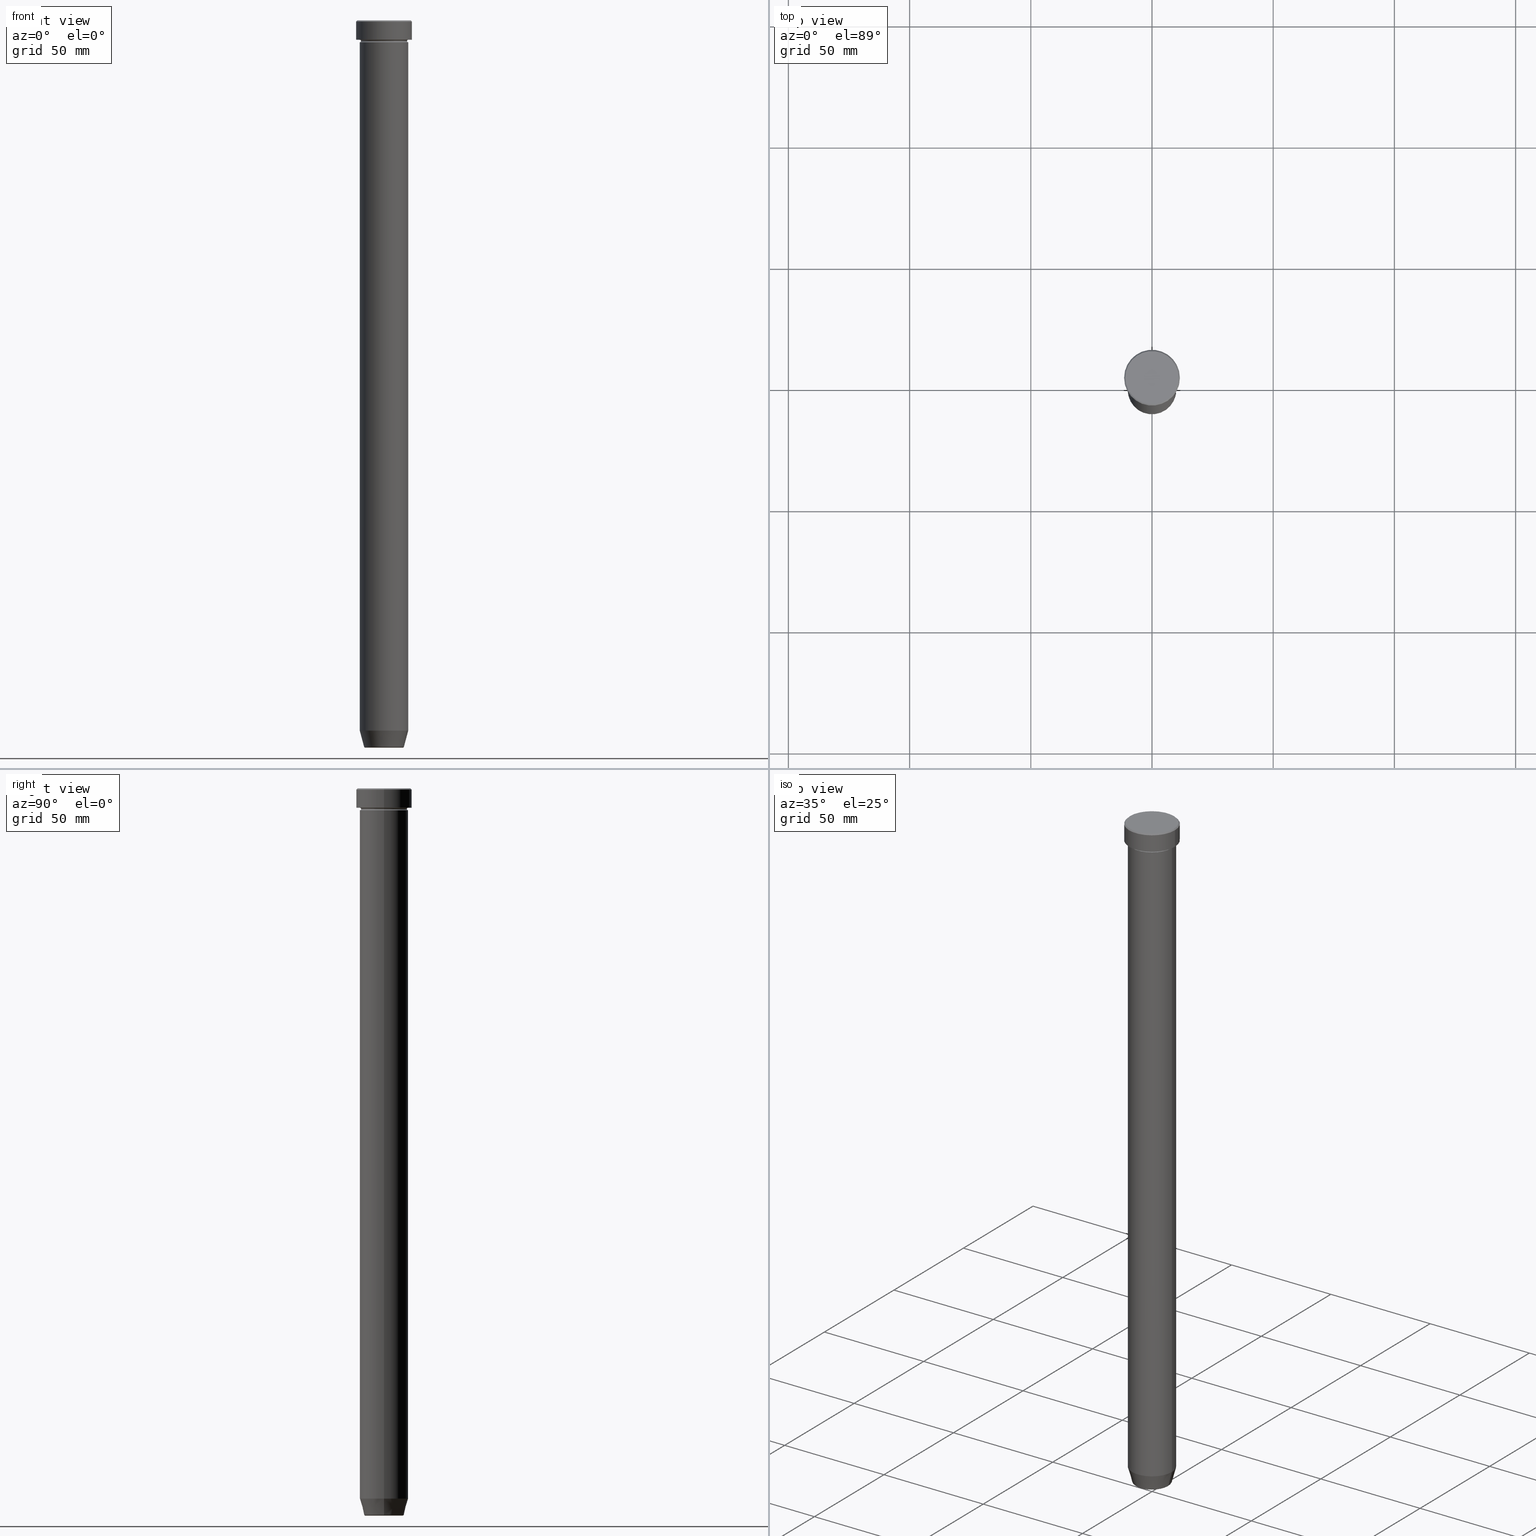
[diagram: canonical four-view strip — front | top / right | iso, engineering-drawing reading convention]
A machine part, canonical four-view strip (front | top / right | iso — engineering-drawing reading convention). The complete STEP part file that produces these views, byte-faithful:
ISO-10303-21;
HEADER;
FILE_DESCRIPTION (( 'STEP AP203' ),
    '1' );
FILE_NAME ('3844.STEP',
    '2024-01-02T20:50:25',
    ( '' ),
    ( '' ),
    'SwSTEP 2.0',
    'SolidWorks 2019',
    '' );
FILE_SCHEMA (( 'CONFIG_CONTROL_DESIGN' ));
ENDSEC;

DATA;
#1 = MANIFOLD_SOLID_BREP ( 'Zkosen�1', #423 ) ;
#2 = CARTESIAN_POINT ( 'NONE',  ( 7.740692158992655614, 0.000000000000000000, -299.5000000000000568 ) ) ;
#3 = EDGE_LOOP ( 'NONE', ( #97, #49, #366, #503 ) ) ;
#4 = CARTESIAN_POINT ( 'NONE',  ( 0.000000000000000000, 0.000000000000000000, 0.000000000000000000 ) ) ;
#5 = ORIENTED_EDGE ( 'NONE', *, *, #73, .F. ) ;
#6 = ORIENTED_EDGE ( 'NONE', *, *, #575, .F. ) ;
#7 = CONICAL_SURFACE ( 'NONE', #88, 11.00000000000000000, 0.7853981633974415066 ) ;
#8 = DIRECTION ( 'NONE',  ( -0.000000000000000000, -0.000000000000000000, 1.000000000000000000 ) ) ;
#9 = AXIS2_PLACEMENT_3D ( 'NONE', #283, #34, #325 ) ;
#10 = ADVANCED_FACE ( 'NONE', ( #159 ), #224, .T. ) ;
#11 = DIRECTION ( 'NONE',  ( -0.000000000000000000, -0.000000000000000000, 1.000000000000000000 ) ) ;
#12 = ORIENTED_EDGE ( 'NONE', *, *, #264, .T. ) ;
#13 = CYLINDRICAL_SURFACE ( 'NONE', #43, 10.00000000000000000 ) ;
#14 = PERSON_AND_ORGANIZATION ( #580, #476 ) ;
#15 = FACE_OUTER_BOUND ( 'NONE', #195, .T. ) ;
#16 = AXIS2_PLACEMENT_3D ( 'NONE', #313, #576, #163 ) ;
#17 = ORIENTED_EDGE ( 'NONE', *, *, #575, .T. ) ;
#18 = LINE ( 'NONE', #168, #129 ) ;
#19 = EDGE_CURVE ( 'NONE', #339, #137, #154, .T. ) ;
#20 = CALENDAR_DATE ( 2024, 2, 1 ) ;
#21 = DIRECTION ( 'NONE',  ( 0.000000000000000000, 0.000000000000000000, -1.000000000000000000 ) ) ;
#22 = EDGE_CURVE ( 'NONE', #514, #543, #444, .T. ) ;
#23 = DATE_TIME_ROLE ( 'classification_date' ) ;
#24 = FACE_OUTER_BOUND ( 'NONE', #587, .T. ) ;
#25 = CARTESIAN_POINT ( 'NONE',  ( 9.500000000000000000, 0.000000000000000000, -8.500000000000000000 ) ) ;
#26 = AXIS2_PLACEMENT_3D ( 'NONE', #439, #579, #583 ) ;
#27 = FACE_OUTER_BOUND ( 'NONE', #470, .T. ) ;
#28 = AXIS2_PLACEMENT_3D ( 'NONE', #509, #378, #178 ) ;
#29 = ORIENTED_EDGE ( 'NONE', *, *, #218, .F. ) ;
#30 = DIRECTION ( 'NONE',  ( 1.000000000000000000, 0.000000000000000000, 0.000000000000000000 ) ) ;
#31 = CARTESIAN_POINT ( 'NONE',  ( 0.000000000000000000, 0.000000000000000000, -22.00000000000000000 ) ) ;
#32 = CC_DESIGN_PERSON_AND_ORGANIZATION_ASSIGNMENT ( #346, #481, ( #363 ) ) ;
#33 = EDGE_CURVE ( 'NONE', #377, #229, #140, .T. ) ;
#34 = DIRECTION ( 'NONE',  ( -0.000000000000000000, -0.000000000000000000, 1.000000000000000000 ) ) ;
#35 = ORIENTED_EDGE ( 'NONE', *, *, #22, .F. ) ;
#36 = CIRCLE ( 'NONE', #569, 9.500000000000000000 ) ;
#37 = DIRECTION ( 'NONE',  ( 0.000000000000000000, -1.000000000000000000, 0.000000000000000000 ) ) ;
#38 = CARTESIAN_POINT ( 'NONE',  ( 0.000000000000000000, 3.061616997868383753E-14, -300.0000000000000568 ) ) ;
#39 = DIRECTION ( 'NONE',  ( 1.000000000000000000, 0.000000000000000000, 0.000000000000000000 ) ) ;
#40 = EDGE_LOOP ( 'NONE', ( #426, #374, #524, #381 ) ) ;
#41 = CONICAL_SURFACE ( 'NONE', #596, 8.124355652982131915, 0.2617993877991502405 ) ;
#42 = DIRECTION ( 'NONE',  ( 0.7071067811865426878, 8.659560562354874926E-17, -0.7071067811865524577 ) ) ;
#43 = AXIS2_PLACEMENT_3D ( 'NONE', #113, #525, #151 ) ;
#44 = LOCAL_TIME ( 21, 50, 25.00000000000000000, #396 ) ;
#45 = ORIENTED_EDGE ( 'NONE', *, *, #456, .F. ) ;
#46 = EDGE_CURVE ( 'NONE', #486, #482, #57, .T. ) ;
#47 = CARTESIAN_POINT ( 'NONE',  ( 0.000000000000000000, 0.000000000000000000, -299.5000000000000568 ) ) ;
#48 = ORIENTED_EDGE ( 'NONE', *, *, #441, .F. ) ;
#49 = ORIENTED_EDGE ( 'NONE', *, *, #449, .T. ) ;
#50 = DIRECTION ( 'NONE',  ( -0.000000000000000000, -0.000000000000000000, 1.000000000000000000 ) ) ;
#51 = ORIENTED_EDGE ( 'NONE', *, *, #326, .F. ) ;
#52 = VERTEX_POINT ( 'NONE', #402 ) ;
#53 = ORIENTED_EDGE ( 'NONE', *, *, #441, .T. ) ;
#54 = PLANE ( 'NONE',  #588 ) ;
#55 = AXIS2_PLACEMENT_3D ( 'NONE', #340, #337, #146 ) ;
#56 = ADVANCED_FACE ( 'NONE', ( #24 ), #450, .T. ) ;
#57 = LINE ( 'NONE', #110, #485 ) ;
#58 = ORIENTED_EDGE ( 'NONE', *, *, #214, .F. ) ;
#59 = CARTESIAN_POINT ( 'NONE',  ( 10.00000000000000000, 0.000000000000000000, -9.000000000000001776 ) ) ;
#60 = EDGE_CURVE ( 'NONE', #482, #256, #416, .T. ) ;
#61 = DATE_TIME_ROLE ( 'creation_date' ) ;
#62 = FACE_OUTER_BOUND ( 'NONE', #454, .T. ) ;
#63 = ADVANCED_FACE ( 'NONE', ( #156 ), #434, .T. ) ;
#64 = ORIENTED_EDGE ( 'NONE', *, *, #512, .T. ) ;
#65 = VERTEX_POINT ( 'NONE', #311 ) ;
#66 = DIRECTION ( 'NONE',  ( -0.000000000000000000, -0.000000000000000000, 1.000000000000000000 ) ) ;
#67 = AXIS2_PLACEMENT_3D ( 'NONE', #271, #125, #87 ) ;
#68 = TOROIDAL_SURFACE ( 'NONE', #9, 7.740692158992655614, 0.5000000000000000000 ) ;
#69 = LINE ( 'NONE', #391, #545 ) ;
#70 = PERSON_AND_ORGANIZATION ( #580, #476 ) ;
#71 = CARTESIAN_POINT ( 'NONE',  ( 0.000000000000000000, 0.000000000000000000, -300.0000000000000568 ) ) ;
#72 = APPLICATION_PROTOCOL_DEFINITION ( 'international standard', 'config_control_design', 1994, #563 ) ;
#73 = EDGE_CURVE ( 'NONE', #358, #324, #228, .T. ) ;
#74 = DIRECTION ( 'NONE',  ( -0.000000000000000000, -0.000000000000000000, 1.000000000000000000 ) ) ;
#75 = EDGE_LOOP ( 'NONE', ( #245, #141 ) ) ;
#76 = DIRECTION ( 'NONE',  ( 1.000000000000000000, 0.000000000000000000, 0.000000000000000000 ) ) ;
#77 = DESIGN_CONTEXT ( 'detailed design', #594, 'design' ) ;
#78 = DIRECTION ( 'NONE',  ( 0.000000000000000000, 0.000000000000000000, -1.000000000000000000 ) ) ;
#79 = ADVANCED_FACE ( 'NONE', ( #275 ), #407, .T. ) ;
#80 = AXIS2_PLACEMENT_3D ( 'NONE', #133, #592, #76 ) ;
#81 = ADVANCED_FACE ( 'NONE', ( #177 ), #41, .T. ) ;
#82 = CIRCLE ( 'NONE', #276, 7.740692158992655614 ) ;
#83 = CARTESIAN_POINT ( 'NONE',  ( 0.000000000000000000, 0.000000000000000000, -0.5000000000000073275 ) ) ;
#84 = VERTEX_POINT ( 'NONE', #217 ) ;
#85 = DIRECTION ( 'NONE',  ( -0.000000000000000000, -0.000000000000000000, 1.000000000000000000 ) ) ;
#86 = APPROVAL ( #529, 'NEUR�EN�' ) ;
#87 = DIRECTION ( 'NONE',  ( 1.000000000000000000, 0.000000000000000000, 0.000000000000000000 ) ) ;
#88 = AXIS2_PLACEMENT_3D ( 'NONE', #430, #288, #427 ) ;
#89 = AXIS2_PLACEMENT_3D ( 'NONE', #165, #78, #544 ) ;
#90 = ADVANCED_FACE ( 'NONE', ( #586 ), #171, .T. ) ;
#91 = FACE_OUTER_BOUND ( 'NONE', #460, .T. ) ;
#92 = EDGE_LOOP ( 'NONE', ( #93, #411, #471, #518 ) ) ;
#93 = ORIENTED_EDGE ( 'NONE', *, *, #319, .F. ) ;
#94 = DIRECTION ( 'NONE',  ( -0.000000000000000000, -0.000000000000000000, 1.000000000000000000 ) ) ;
#95 = ADVANCED_FACE ( 'NONE', ( #27 ), #235, .F. ) ;
#96 = CALENDAR_DATE ( 2024, 2, 1 ) ;
#97 = ORIENTED_EDGE ( 'NONE', *, *, #46, .F. ) ;
#98 = EDGE_LOOP ( 'NONE', ( #51, #517, #12, #472 ) ) ;
#99 = DIRECTION ( 'NONE',  ( -0.000000000000000000, -0.000000000000000000, 1.000000000000000000 ) ) ;
#100 = ORIENTED_EDGE ( 'NONE', *, *, #510, .T. ) ;
#101 = EDGE_CURVE ( 'NONE', #249, #244, #128, .T. ) ;
#102 = DIRECTION ( 'NONE',  ( -0.000000000000000000, -0.000000000000000000, 1.000000000000000000 ) ) ;
#103 = ORIENTED_EDGE ( 'NONE', *, *, #148, .F. ) ;
#104 = ORIENTED_EDGE ( 'NONE', *, *, #169, .T. ) ;
#105 = ORIENTED_EDGE ( 'NONE', *, *, #124, .F. ) ;
#106 = CARTESIAN_POINT ( 'NONE',  ( 0.000000000000000000, 0.000000000000000000, -0.5000000000000073275 ) ) ;
#107 = AXIS2_PLACEMENT_3D ( 'NONE', #382, #99, #349 ) ;
#108 = DIRECTION ( 'NONE',  ( 0.000000000000000000, 0.000000000000000000, 1.000000000000000000 ) ) ;
#109 = DIRECTION ( 'NONE',  ( 1.000000000000000000, 0.000000000000000000, 0.000000000000000000 ) ) ;
#110 = CARTESIAN_POINT ( 'NONE',  ( -11.50000000000000000, 1.408343819019456176E-15, 0.000000000000000000 ) ) ;
#111 = DATE_AND_TIME ( #352, #528 ) ;
#112 = DIRECTION ( 'NONE',  ( 0.000000000000000000, 0.000000000000000000, -1.000000000000000000 ) ) ;
#113 = CARTESIAN_POINT ( 'NONE',  ( 0.000000000000000000, 0.000000000000000000, 0.000000000000000000 ) ) ;
#114 = CARTESIAN_POINT ( 'NONE',  ( 0.000000000000000000, 0.000000000000000000, 0.000000000000000000 ) ) ;
#115 = COORDINATED_UNIVERSAL_TIME_OFFSET ( 1, 0, .AHEAD. ) ;
#116 = CARTESIAN_POINT ( 'NONE',  ( -9.999999999999998224, 1.224646799147353059E-15, 0.000000000000000000 ) ) ;
#117 = AXIS2_PLACEMENT_3D ( 'NONE', #106, #389, #197 ) ;
#118 = AXIS2_PLACEMENT_3D ( 'NONE', #266, #440, #123 ) ;
#119 = APPROVAL_PERSON_ORGANIZATION ( #298, #86, #442 ) ;
#120 = COORDINATED_UNIVERSAL_TIME_OFFSET ( 1, 0, .AHEAD. ) ;
#121 = EDGE_CURVE ( 'NONE', #279, #256, #69, .T. ) ;
#122 = DIRECTION ( 'NONE',  ( 1.000000000000000000, 0.000000000000000000, 0.000000000000000000 ) ) ;
#123 = DIRECTION ( 'NONE',  ( 1.000000000000000000, 0.000000000000000000, 0.000000000000000000 ) ) ;
#124 = EDGE_CURVE ( 'NONE', #339, #278, #383, .T. ) ;
#125 = DIRECTION ( 'NONE',  ( -0.000000000000000000, -0.000000000000000000, 1.000000000000000000 ) ) ;
#126 = CC_DESIGN_DATE_AND_TIME_ASSIGNMENT ( #533, #61, ( #447 ) ) ;
#127 = CARTESIAN_POINT ( 'NONE',  ( 8.124355652982131915, 0.000000000000000000, -300.0000000000000568 ) ) ;
#128 = CIRCLE ( 'NONE', #200, 0.5000000000000004441 ) ;
#129 = VECTOR ( 'NONE', #443, 1000.000000000000114 ) ;
#130 = ORIENTED_EDGE ( 'NONE', *, *, #139, .T. ) ;
#131 = DIRECTION ( 'NONE',  ( -0.000000000000000000, -0.000000000000000000, 1.000000000000000000 ) ) ;
#132 = CARTESIAN_POINT ( 'NONE',  ( 0.000000000000000000, 11.50000000000000000, -8.000000000000000000 ) ) ;
#133 = CARTESIAN_POINT ( 'NONE',  ( 0.000000000000000000, 0.000000000000000000, 0.000000000000000000 ) ) ;
#134 = ADVANCED_FACE ( 'NONE', ( #62 ), #54, .T. ) ;
#135 = EDGE_LOOP ( 'NONE', ( #368, #371, #210, #103 ) ) ;
#136 = AXIS2_PLACEMENT_3D ( 'NONE', #31, #74, #401 ) ;
#137 = VERTEX_POINT ( 'NONE', #59 ) ;
#138 = ORIENTED_EDGE ( 'NONE', *, *, #139, .F. ) ;
#139 = EDGE_CURVE ( 'NONE', #336, #65, #361, .T. ) ;
#140 = CIRCLE ( 'NONE', #495, 0.5000000000000004441 ) ;
#141 = ORIENTED_EDGE ( 'NONE', *, *, #449, .F. ) ;
#142 = CIRCLE ( 'NONE', #136, 10.00000000000000000 ) ;
#143 = AXIS2_PLACEMENT_3D ( 'NONE', #542, #211, #30 ) ;
#144 = FACE_OUTER_BOUND ( 'NONE', #92, .T. ) ;
#145 = ORIENTED_EDGE ( 'NONE', *, *, #510, .F. ) ;
#146 = DIRECTION ( 'NONE',  ( -1.000000000000000000, 0.000000000000000000, 0.000000000000000000 ) ) ;
#147 = CC_DESIGN_PERSON_AND_ORGANIZATION_ASSIGNMENT ( #557, #233, ( #363 ) ) ;
#148 = EDGE_CURVE ( 'NONE', #256, #482, #515, .T. ) ;
#149 = DIRECTION ( 'NONE',  ( -0.000000000000000000, -0.000000000000000000, 1.000000000000000000 ) ) ;
#150 = APPROVAL_STATUS ( 'not_yet_approved' ) ;
#151 = DIRECTION ( 'NONE',  ( 1.000000000000000000, 0.000000000000000000, 0.000000000000000000 ) ) ;
#152 = CIRCLE ( 'NONE', #223, 9.500000000000000000 ) ;
#153 = CC_DESIGN_SECURITY_CLASSIFICATION ( #315, ( #363 ) ) ;
#154 = LINE ( 'NONE', #338, #294 ) ;
#155 = APPROVAL_STATUS ( 'not_yet_approved' ) ;
#156 = FACE_OUTER_BOUND ( 'NONE', #135, .T. ) ;
#157 = CARTESIAN_POINT ( 'NONE',  ( 0.000000000000000000, 0.000000000000000000, -9.000000000000001776 ) ) ;
#158 = APPROVAL_DATE_TIME ( #350, #86 ) ;
#159 = FACE_OUTER_BOUND ( 'NONE', #286, .T. ) ;
#160 = DIRECTION ( 'NONE',  ( 1.224646799147353207E-16, 1.000000000000000000, 0.000000000000000000 ) ) ;
#161 = EDGE_CURVE ( 'NONE', #244, #229, #334, .T. ) ;
#162 = COORDINATED_UNIVERSAL_TIME_OFFSET ( 1, 0, .AHEAD. ) ;
#163 = DIRECTION ( 'NONE',  ( -1.000000000000000000, 0.000000000000000000, 0.000000000000000000 ) ) ;
#164 = CIRCLE ( 'NONE', #55, 10.00000000000000000 ) ;
#165 = CARTESIAN_POINT ( 'NONE',  ( 0.000000000000000000, 0.000000000000000000, -8.500000000000000000 ) ) ;
#166 = ADVANCED_FACE ( 'NONE', ( #144 ), #7, .T. ) ;
#167 = FACE_OUTER_BOUND ( 'NONE', #451, .T. ) ;
#168 = CARTESIAN_POINT ( 'NONE',  ( -8.124355652982131915, 9.949466145559272639E-16, -300.0000000000000568 ) ) ;
#169 = EDGE_CURVE ( 'NONE', #65, #543, #255, .T. ) ;
#170 = AXIS2_PLACEMENT_3D ( 'NONE', #422, #292, #242 ) ;
#171 = PLANE ( 'NONE',  #393 ) ;
#172 = CIRCLE ( 'NONE', #537, 7.740692158992655614 ) ;
#173 = AXIS2_PLACEMENT_3D ( 'NONE', #301, #108, #392 ) ;
#174 = ORIENTED_EDGE ( 'NONE', *, *, #101, .T. ) ;
#175 = ORIENTED_EDGE ( 'NONE', *, *, #22, .T. ) ;
#176 = CARTESIAN_POINT ( 'NONE',  ( 7.740692158992655614, 0.000000000000000000, -300.0000000000000568 ) ) ;
#177 = FACE_OUTER_BOUND ( 'NONE', #347, .T. ) ;
#178 = DIRECTION ( 'NONE',  ( 1.000000000000000000, 0.000000000000000000, 0.000000000000000000 ) ) ;
#179 = AXIS2_PLACEMENT_3D ( 'NONE', #2, #560, #341 ) ;
#180 = CIRCLE ( 'NONE', #230, 10.00000000000000000 ) ;
#181 = EDGE_CURVE ( 'NONE', #229, #244, #164, .T. ) ;
#182 = DIRECTION ( 'NONE',  ( 1.000000000000000000, 0.000000000000000000, 0.000000000000000000 ) ) ;
#183 = ORIENTED_EDGE ( 'NONE', *, *, #353, .T. ) ;
#184 = VERTEX_POINT ( 'NONE', #193 ) ;
#185 = DIRECTION ( 'NONE',  ( -0.000000000000000000, -0.000000000000000000, 1.000000000000000000 ) ) ;
#186 = ORIENTED_EDGE ( 'NONE', *, *, #332, .F. ) ;
#187 = APPLICATION_PROTOCOL_DEFINITION ( 'international standard', 'config_control_design', 1994, #594 ) ;
#188 = ORIENTED_EDGE ( 'NONE', *, *, #73, .T. ) ;
#189 = DIRECTION ( 'NONE',  ( -0.000000000000000000, -0.000000000000000000, 1.000000000000000000 ) ) ;
#190 = ORIENTED_EDGE ( 'NONE', *, *, #33, .F. ) ;
#191 = AXIS2_PLACEMENT_3D ( 'NONE', #114, #541, #428 ) ;
#192 = TOROIDAL_SURFACE ( 'NONE', #295, 10.00000000000000000, 0.5000000000000000000 ) ;
#193 = CARTESIAN_POINT ( 'NONE',  ( -10.00000000000000000, 1.224646799147353256E-15, -9.000000000000001776 ) ) ;
#194 = CARTESIAN_POINT ( 'NONE',  ( 0.000000000000000000, 0.000000000000000000, -22.00000000000000000 ) ) ;
#195 = EDGE_LOOP ( 'NONE', ( #479, #130, #58, #35 ) ) ;
#196 = CYLINDRICAL_SURFACE ( 'NONE', #562, 10.00000000000000000 ) ;
#197 = DIRECTION ( 'NONE',  ( 1.000000000000000000, 0.000000000000000000, 0.000000000000000000 ) ) ;
#198 = APPROVAL_ROLE ( '' ) ;
#199 = DIRECTION ( 'NONE',  ( 0.000000000000000000, 0.000000000000000000, -1.000000000000000000 ) ) ;
#200 = AXIS2_PLACEMENT_3D ( 'NONE', #243, #526, #431 ) ;
#201 = ADVANCED_FACE ( 'NONE', ( #395 ), #196, .T. ) ;
#202 = DIRECTION ( 'NONE',  ( -1.000000000000000000, 0.000000000000000000, 0.000000000000000000 ) ) ;
#203 = MECHANICAL_CONTEXT ( 'NONE', #563, 'mechanical' ) ;
#204 = CARTESIAN_POINT ( 'NONE',  ( -10.00000000000000000, 1.224646799147353256E-15, -22.00000000000000000 ) ) ;
#205 = ADVANCED_FACE ( 'NONE', ( #564 ), #13, .T. ) ;
#206 = ORIENTED_EDGE ( 'NONE', *, *, #121, .F. ) ;
#207 = SHAPE_DEFINITION_REPRESENTATION ( #565, #405 ) ;
#208 = FACE_OUTER_BOUND ( 'NONE', #277, .T. ) ;
#209 = PERSON_AND_ORGANIZATION ( #580, #476 ) ;
#210 = ORIENTED_EDGE ( 'NONE', *, *, #500, .T. ) ;
#211 = DIRECTION ( 'NONE',  ( -0.000000000000000000, -0.000000000000000000, 1.000000000000000000 ) ) ;
#212 = CC_DESIGN_PERSON_AND_ORGANIZATION_ASSIGNMENT ( #70, #531, ( #315 ) ) ;
#213 = AXIS2_PLACEMENT_3D ( 'NONE', #47, #421, #519 ) ;
#214 = EDGE_CURVE ( 'NONE', #543, #65, #505, .T. ) ;
#215 = DIRECTION ( 'NONE',  ( 0.2588190451025214611, 0.000000000000000000, 0.9659258262890679791 ) ) ;
#216 = DIRECTION ( 'NONE',  ( 1.000000000000000000, 0.000000000000000000, 0.000000000000000000 ) ) ;
#217 = CARTESIAN_POINT ( 'NONE',  ( 11.00000000000000000, 1.377727649040772389E-15, 0.000000000000000000 ) ) ;
#218 = EDGE_CURVE ( 'NONE', #137, #184, #314, .T. ) ;
#219 = ORIENTED_EDGE ( 'NONE', *, *, #181, .T. ) ;
#220 = DIRECTION ( 'NONE',  ( 0.000000000000000000, 0.000000000000000000, -1.000000000000000000 ) ) ;
#221 = EDGE_CURVE ( 'NONE', #278, #184, #561, .T. ) ;
#222 = AXIS2_PLACEMENT_3D ( 'NONE', #38, #412, #282 ) ;
#223 = AXIS2_PLACEMENT_3D ( 'NONE', #227, #415, #182 ) ;
#224 = CYLINDRICAL_SURFACE ( 'NONE', #191, 9.999999999999998224 ) ;
#225 = LINE ( 'NONE', #595, #589 ) ;
#226 = DIRECTION ( 'NONE',  ( -0.000000000000000000, -0.000000000000000000, 1.000000000000000000 ) ) ;
#227 = CARTESIAN_POINT ( 'NONE',  ( 0.000000000000000000, 0.000000000000000000, -8.500000000000000000 ) ) ;
#228 = CIRCLE ( 'NONE', #67, 9.999999999999998224 ) ;
#229 = VERTEX_POINT ( 'NONE', #465 ) ;
#230 = AXIS2_PLACEMENT_3D ( 'NONE', #157, #66, #263 ) ;
#231 = CARTESIAN_POINT ( 'NONE',  ( -11.50000000000000000, 1.408343819019456176E-15, -0.5000000000000073275 ) ) ;
#232 = ORIENTED_EDGE ( 'NONE', *, *, #254, .T. ) ;
#233 = PERSON_AND_ORGANIZATION_ROLE ( 'design_supplier' ) ;
#234 = CARTESIAN_POINT ( 'NONE',  ( 0.000000000000000000, 0.000000000000000000, -22.00000000000000000 ) ) ;
#235 = PLANE ( 'NONE',  #536 ) ;
#236 = ORIENTED_EDGE ( 'NONE', *, *, #333, .F. ) ;
#237 = CARTESIAN_POINT ( 'NONE',  ( 0.000000000000000000, 0.000000000000000000, -299.6294095225512706 ) ) ;
#238 = ORIENTED_EDGE ( 'NONE', *, *, #250, .T. ) ;
#239 = AXIS2_PLACEMENT_3D ( 'NONE', #83, #199, #571 ) ;
#240 = CIRCLE ( 'NONE', #335, 11.50000000000000000 ) ;
#241 = CC_DESIGN_APPROVAL ( #86, ( #447 ) ) ;
#242 = DIRECTION ( 'NONE',  ( -1.000000000000000000, 1.224646799147355426E-16, 0.000000000000000000 ) ) ;
#243 = CARTESIAN_POINT ( 'NONE',  ( -10.00000000000000000, 0.000000000000000000, -8.500000000000000000 ) ) ;
#244 = VERTEX_POINT ( 'NONE', #480 ) ;
#245 = ORIENTED_EDGE ( 'NONE', *, *, #250, .F. ) ;
#246 = DIRECTION ( 'NONE',  ( 1.000000000000000000, 0.000000000000000000, 0.000000000000000000 ) ) ;
#247 = ORIENTED_EDGE ( 'NONE', *, *, #60, .T. ) ;
#248 = PERSON_AND_ORGANIZATION_ROLE ( 'design_owner' ) ;
#249 = VERTEX_POINT ( 'NONE', #433 ) ;
#250 = EDGE_CURVE ( 'NONE', #279, #486, #240, .T. ) ;
#251 = DIRECTION ( 'NONE',  ( -0.000000000000000000, -0.000000000000000000, 1.000000000000000000 ) ) ;
#252 = SECURITY_CLASSIFICATION_LEVEL ( 'unclassified' ) ;
#253 = ORIENTED_EDGE ( 'NONE', *, *, #218, .T. ) ;
#254 = EDGE_CURVE ( 'NONE', #324, #358, #305, .T. ) ;
#255 = CIRCLE ( 'NONE', #504, 8.223655072137189492 ) ;
#256 = VERTEX_POINT ( 'NONE', #342 ) ;
#257 = CARTESIAN_POINT ( 'NONE',  ( 0.000000000000000000, 0.000000000000000000, 0.000000000000000000 ) ) ;
#258 = CIRCLE ( 'NONE', #435, 11.50000000000000000 ) ;
#259 = DATE_AND_TIME ( #20, #323 ) ;
#260 = DIRECTION ( 'NONE',  ( 1.000000000000000000, 0.000000000000000000, 0.000000000000000000 ) ) ;
#261 = ADVANCED_FACE ( 'NONE', ( #15 ), #445, .T. ) ;
#262 = DIRECTION ( 'NONE',  ( -0.000000000000000000, -0.000000000000000000, 1.000000000000000000 ) ) ;
#263 = DIRECTION ( 'NONE',  ( 1.000000000000000000, 0.000000000000000000, 0.000000000000000000 ) ) ;
#264 = EDGE_CURVE ( 'NONE', #184, #137, #180, .T. ) ;
#265 = CARTESIAN_POINT ( 'NONE',  ( 0.000000000000000000, 0.000000000000000000, -300.0000000000000568 ) ) ;
#266 = CARTESIAN_POINT ( 'NONE',  ( 0.000000000000000000, 0.000000000000000000, 0.000000000000000000 ) ) ;
#267 = AXIS2_PLACEMENT_3D ( 'NONE', #355, #539, #122 ) ;
#268 = ORIENTED_EDGE ( 'NONE', *, *, #384, .T. ) ;
#269 = DIRECTION ( 'NONE',  ( -0.000000000000000000, -0.000000000000000000, 1.000000000000000000 ) ) ;
#270 = DIRECTION ( 'NONE',  ( 1.000000000000000000, 0.000000000000000000, 0.000000000000000000 ) ) ;
#271 = CARTESIAN_POINT ( 'NONE',  ( 0.000000000000000000, 0.000000000000000000, -293.0000000000000568 ) ) ;
#272 = ADVANCED_FACE ( 'NONE', ( #167 ), #394, .T. ) ;
#273 = CARTESIAN_POINT ( 'NONE',  ( 10.00000000000000000, 0.000000000000000000, -8.500000000000000000 ) ) ;
#274 = PRODUCT_RELATED_PRODUCT_CATEGORY ( 'detail', '', ( #344 ) ) ;
#275 = FACE_OUTER_BOUND ( 'NONE', #3, .T. ) ;
#276 = AXIS2_PLACEMENT_3D ( 'NONE', #71, #21, #547 ) ;
#277 = EDGE_LOOP ( 'NONE', ( #551, #188, #53, #145 ) ) ;
#278 = VERTEX_POINT ( 'NONE', #204 ) ;
#279 = VERTEX_POINT ( 'NONE', #397 ) ;
#280 = DIRECTION ( 'NONE',  ( 1.000000000000000000, 0.000000000000000000, 0.000000000000000000 ) ) ;
#281 = UNCERTAINTY_MEASURE_WITH_UNIT (LENGTH_MEASURE( 1.000000000000000082E-05 ), #373, 'distance_accuracy_value', 'NONE');
#282 = DIRECTION ( 'NONE',  ( 1.000000000000000000, 0.000000000000000000, 0.000000000000000000 ) ) ;
#283 = CARTESIAN_POINT ( 'NONE',  ( 0.000000000000000000, 0.000000000000000000, -299.5000000000000568 ) ) ;
#284 = ORIENTED_EDGE ( 'NONE', *, *, #287, .T. ) ;
#285 = TOROIDAL_SURFACE ( 'NONE', #16, 10.00000000000000000, 0.5000000000000000000 ) ;
#286 = EDGE_LOOP ( 'NONE', ( #232, #183, #599, #48 ) ) ;
#287 = EDGE_CURVE ( 'NONE', #65, #358, #18, .T. ) ;
#288 = DIRECTION ( 'NONE',  ( 0.000000000000000000, 0.000000000000000000, -1.000000000000000000 ) ) ;
#289 = DIRECTION ( 'NONE',  ( 0.000000000000000000, 0.000000000000000000, -1.000000000000000000 ) ) ;
#290 = EDGE_LOOP ( 'NONE', ( #138, #236, #175, #466 ) ) ;
#291 = ORIENTED_EDGE ( 'NONE', *, *, #181, .F. ) ;
#292 = DIRECTION ( 'NONE',  ( 1.224646799147353207E-16, 1.000000000000000000, 0.000000000000000000 ) ) ;
#293 = DIRECTION ( 'NONE',  ( -1.224646799147353207E-16, 1.000000000000000000, 0.000000000000000000 ) ) ;
#294 = VECTOR ( 'NONE', #94, 1000.000000000000000 ) ;
#295 = AXIS2_PLACEMENT_3D ( 'NONE', #461, #185, #409 ) ;
#296 = CC_DESIGN_APPROVAL ( #577, ( #315 ) ) ;
#297 = CARTESIAN_POINT ( 'NONE',  ( 0.000000000000000000, 0.000000000000000000, -8.000000000000000000 ) ) ;
#298 = PERSON_AND_ORGANIZATION ( #580, #476 ) ;
#299 = CARTESIAN_POINT ( 'NONE',  ( -10.00000000000000000, 1.224646799147353256E-15, 0.000000000000000000 ) ) ;
#300 = CC_DESIGN_PERSON_AND_ORGANIZATION_ASSIGNMENT ( #209, #248, ( #344 ) ) ;
#301 = CARTESIAN_POINT ( 'NONE',  ( 0.000000000000000000, 0.000000000000000000, 0.000000000000000000 ) ) ;
#302 = DIRECTION ( 'NONE',  ( -0.000000000000000000, -0.000000000000000000, 1.000000000000000000 ) ) ;
#303 = APPROVAL_DATE_TIME ( #432, #484 ) ;
#304 = AXIS2_PLACEMENT_3D ( 'NONE', #234, #102, #477 ) ;
#305 = CIRCLE ( 'NONE', #516, 9.999999999999998224 ) ;
#306 = CYLINDRICAL_SURFACE ( 'NONE', #385, 9.999999999999998224 ) ;
#307 = CALENDAR_DATE ( 2024, 2, 1 ) ;
#308 = DIRECTION ( 'NONE',  ( -0.000000000000000000, -0.000000000000000000, 1.000000000000000000 ) ) ;
#309 = ADVANCED_FACE ( 'NONE', ( #208 ), #306, .T. ) ;
#310 = DIRECTION ( 'NONE',  ( -0.000000000000000000, -0.000000000000000000, 1.000000000000000000 ) ) ;
#311 = CARTESIAN_POINT ( 'NONE',  ( -8.223655072137189492, 1.115877042642911856E-15, -299.6294095225512706 ) ) ;
#312 = CARTESIAN_POINT ( 'NONE',  ( 9.999999999999998224, 0.000000000000000000, -293.0000000000000568 ) ) ;
#313 = CARTESIAN_POINT ( 'NONE',  ( 0.000000000000000000, 0.000000000000000000, -8.500000000000000000 ) ) ;
#314 = CIRCLE ( 'NONE', #463, 10.00000000000000000 ) ;
#315 = SECURITY_CLASSIFICATION ( '', '', #252 ) ;
#316 = ORIENTED_EDGE ( 'NONE', *, *, #319, .T. ) ;
#317 = ORIENTED_EDGE ( 'NONE', *, *, #254, .F. ) ;
#318 = CARTESIAN_POINT ( 'NONE',  ( 0.000000000000000000, 0.000000000000000000, -8.500000000000000000 ) ) ;
#319 = EDGE_CURVE ( 'NONE', #84, #52, #546, .T. ) ;
#320 = FACE_OUTER_BOUND ( 'NONE', #98, .T. ) ;
#321 = LINE ( 'NONE', #555, #424 ) ;
#322 = VECTOR ( 'NONE', #149, 1000.000000000000000 ) ;
#323 = LOCAL_TIME ( 21, 50, 25.00000000000000000, #331 ) ;
#324 = VERTEX_POINT ( 'NONE', #312 ) ;
#325 = DIRECTION ( 'NONE',  ( 1.000000000000000000, 0.000000000000000000, 0.000000000000000000 ) ) ;
#326 = EDGE_CURVE ( 'NONE', #249, #377, #36, .T. ) ;
#327 = EDGE_LOOP ( 'NONE', ( #513, #420, #520, #330 ) ) ;
#328 = ORIENTED_EDGE ( 'NONE', *, *, #161, .T. ) ;
#329 = FACE_OUTER_BOUND ( 'NONE', #290, .T. ) ;
#330 = ORIENTED_EDGE ( 'NONE', *, *, #264, .F. ) ;
#331 = COORDINATED_UNIVERSAL_TIME_OFFSET ( 1, 0, .AHEAD. ) ;
#332 = EDGE_CURVE ( 'NONE', #249, #184, #553, .T. ) ;
#333 = EDGE_CURVE ( 'NONE', #514, #336, #82, .T. ) ;
#334 = CIRCLE ( 'NONE', #455, 10.00000000000000000 ) ;
#335 = AXIS2_PLACEMENT_3D ( 'NONE', #297, #8, #388 ) ;
#336 = VERTEX_POINT ( 'NONE', #581 ) ;
#337 = DIRECTION ( 'NONE',  ( -0.000000000000000000, -0.000000000000000000, 1.000000000000000000 ) ) ;
#338 = CARTESIAN_POINT ( 'NONE',  ( 10.00000000000000000, 0.000000000000000000, 0.000000000000000000 ) ) ;
#339 = VERTEX_POINT ( 'NONE', #585 ) ;
#340 = CARTESIAN_POINT ( 'NONE',  ( 0.000000000000000000, 0.000000000000000000, -8.000000000000000000 ) ) ;
#341 = DIRECTION ( 'NONE',  ( 0.000000000000000000, 0.000000000000000000, -1.000000000000000000 ) ) ;
#342 = CARTESIAN_POINT ( 'NONE',  ( 11.50000000000000000, 0.000000000000000000, -0.5000000000000073275 ) ) ;
#343 = AXIS2_PLACEMENT_3D ( 'NONE', #273, #37, #220 ) ;
#344 = PRODUCT ( '3844', '3844', '', ( #203 ) ) ;
#345 = CARTESIAN_POINT ( 'NONE',  ( 0.000000000000000000, 0.000000000000000000, -9.000000000000001776 ) ) ;
#346 = PERSON_AND_ORGANIZATION ( #580, #476 ) ;
#347 = EDGE_LOOP ( 'NONE', ( #375, #104, #268, #5 ) ) ;
#348 = CARTESIAN_POINT ( 'NONE',  ( 0.000000000000000000, 0.000000000000000000, 0.000000000000000000 ) ) ;
#349 = DIRECTION ( 'NONE',  ( -1.000000000000000000, 0.000000000000000000, 0.000000000000000000 ) ) ;
#350 = DATE_AND_TIME ( #96, #425 ) ;
#351 = DIRECTION ( 'NONE',  ( -1.000000000000000000, 1.224646799147353454E-16, 0.000000000000000000 ) ) ;
#352 = CALENDAR_DATE ( 2024, 2, 1 ) ;
#353 = EDGE_CURVE ( 'NONE', #358, #490, #359, .T. ) ;
#354 = AXIS2_PLACEMENT_3D ( 'NONE', #590, #131, #280 ) ;
#355 = CARTESIAN_POINT ( 'NONE',  ( 0.000000000000000000, 0.000000000000000000, -22.00000000000000000 ) ) ;
#356 = CARTESIAN_POINT ( 'NONE',  ( -9.999999999999998224, 1.224646799147353059E-15, -293.0000000000000568 ) ) ;
#357 = DIRECTION ( 'NONE',  ( -0.000000000000000000, -0.000000000000000000, 1.000000000000000000 ) ) ;
#358 = VERTEX_POINT ( 'NONE', #356 ) ;
#359 = LINE ( 'NONE', #116, #457 ) ;
#360 = FACE_OUTER_BOUND ( 'NONE', #448, .T. ) ;
#361 = CIRCLE ( 'NONE', #170, 0.4999999999999995559 ) ;
#362 = VECTOR ( 'NONE', #85, 1000.000000000000000 ) ;
#363 = PRODUCT_DEFINITION_FORMATION_WITH_SPECIFIED_SOURCE ( 'LIBOVOLN�', '', #344, .NOT_KNOWN. ) ;
#364 = FACE_BOUND ( 'NONE', #556, .T. ) ;
#365 = DIRECTION ( 'NONE',  ( 0.000000000000000000, 0.000000000000000000, -1.000000000000000000 ) ) ;
#366 = ORIENTED_EDGE ( 'NONE', *, *, #121, .T. ) ;
#367 =( NAMED_UNIT ( * ) SI_UNIT ( $, .STERADIAN. ) SOLID_ANGLE_UNIT ( ) );
#368 = ORIENTED_EDGE ( 'NONE', *, *, #462, .F. ) ;
#369 = PLANE ( 'NONE',  #417 ) ;
#370 = AXIS2_PLACEMENT_3D ( 'NONE', #318, #226, #39 ) ;
#371 = ORIENTED_EDGE ( 'NONE', *, *, #512, .F. ) ;
#372 = ORIENTED_EDGE ( 'NONE', *, *, #419, .T. ) ;
#373 =( LENGTH_UNIT ( ) NAMED_UNIT ( * ) SI_UNIT ( .MILLI., .METRE. ) );
#374 = ORIENTED_EDGE ( 'NONE', *, *, #33, .T. ) ;
#375 = ORIENTED_EDGE ( 'NONE', *, *, #287, .F. ) ;
#376 = ORIENTED_EDGE ( 'NONE', *, *, #436, .T. ) ;
#377 = VERTEX_POINT ( 'NONE', #25 ) ;
#378 = DIRECTION ( 'NONE',  ( -0.000000000000000000, -0.000000000000000000, 1.000000000000000000 ) ) ;
#379 = MANIFOLD_SOLID_BREP ( 'Zaoblit4', #408 ) ;
#380 = CC_DESIGN_DATE_AND_TIME_ASSIGNMENT ( #259, #23, ( #315 ) ) ;
#381 = ORIENTED_EDGE ( 'NONE', *, *, #101, .F. ) ;
#382 = CARTESIAN_POINT ( 'NONE',  ( 0.000000000000000000, 0.000000000000000000, -299.6294095225512706 ) ) ;
#383 = CIRCLE ( 'NONE', #304, 10.00000000000000000 ) ;
#384 = EDGE_CURVE ( 'NONE', #543, #324, #399, .T. ) ;
#385 = AXIS2_PLACEMENT_3D ( 'NONE', #257, #302, #216 ) ;
#386 = ORIENTED_EDGE ( 'NONE', *, *, #468, .T. ) ;
#387 =( GEOMETRIC_REPRESENTATION_CONTEXT ( 3 ) GLOBAL_UNCERTAINTY_ASSIGNED_CONTEXT ( ( #281 ) ) GLOBAL_UNIT_ASSIGNED_CONTEXT ( ( #373, #550, #367 ) ) REPRESENTATION_CONTEXT ( 'NONE', 'WORKASPACE' ) );
#388 = DIRECTION ( 'NONE',  ( 1.000000000000000000, 0.000000000000000000, 0.000000000000000000 ) ) ;
#389 = DIRECTION ( 'NONE',  ( 0.000000000000000000, 0.000000000000000000, -1.000000000000000000 ) ) ;
#390 = CARTESIAN_POINT ( 'NONE',  ( 0.000000000000000000, 0.000000000000000000, -8.000000000000000000 ) ) ;
#391 = CARTESIAN_POINT ( 'NONE',  ( 11.50000000000000000, 0.000000000000000000, 0.000000000000000000 ) ) ;
#392 = DIRECTION ( 'NONE',  ( 1.000000000000000000, 0.000000000000000000, 0.000000000000000000 ) ) ;
#393 = AXIS2_PLACEMENT_3D ( 'NONE', #591, #365, #540 ) ;
#394 = CONICAL_SURFACE ( 'NONE', #143, 8.124355652982131915, 0.2617993877991502405 ) ;
#395 = FACE_OUTER_BOUND ( 'NONE', #558, .T. ) ;
#396 = COORDINATED_UNIVERSAL_TIME_OFFSET ( 1, 0, .AHEAD. ) ;
#397 = CARTESIAN_POINT ( 'NONE',  ( 11.50000000000000000, 0.000000000000000000, -8.000000000000000000 ) ) ;
#398 = APPROVAL_DATE_TIME ( #111, #577 ) ;
#399 = LINE ( 'NONE', #127, #496 ) ;
#400 = CIRCLE ( 'NONE', #267, 10.00000000000000000 ) ;
#401 = DIRECTION ( 'NONE',  ( 1.000000000000000000, 0.000000000000000000, 0.000000000000000000 ) ) ;
#402 = CARTESIAN_POINT ( 'NONE',  ( -11.00000000000000000, 0.000000000000000000, 0.000000000000000000 ) ) ;
#403 = EDGE_LOOP ( 'NONE', ( #105, #45 ) ) ;
#404 = CARTESIAN_POINT ( 'NONE',  ( 0.000000000000000000, 0.000000000000000000, -300.0000000000000568 ) ) ;
#405 = ADVANCED_BREP_SHAPE_REPRESENTATION ( '3844', ( #1, #379, #173 ), #387 ) ;
#406 = CARTESIAN_POINT ( 'NONE',  ( 0.000000000000000000, 0.000000000000000000, -8.000000000000000000 ) ) ;
#407 = CYLINDRICAL_SURFACE ( 'NONE', #80, 11.50000000000000000 ) ;
#408 = CLOSED_SHELL ( 'NONE', ( #261, #272, #10, #95, #309, #81, #535, #491 ) ) ;
#409 = DIRECTION ( 'NONE',  ( 1.000000000000000000, 0.000000000000000000, 0.000000000000000000 ) ) ;
#410 = CIRCLE ( 'NONE', #28, 10.00000000000000000 ) ;
#411 = ORIENTED_EDGE ( 'NONE', *, *, #462, .T. ) ;
#412 = DIRECTION ( 'NONE',  ( 0.000000000000000000, -0.000000000000000000, 1.000000000000000000 ) ) ;
#413 = ADVANCED_FACE ( 'NONE', ( #446 ), #527, .F. ) ;
#414 = CARTESIAN_POINT ( 'NONE',  ( -10.00000000000000000, 1.224646799147353256E-15, -22.00000000000000000 ) ) ;
#415 = DIRECTION ( 'NONE',  ( -0.000000000000000000, -0.000000000000000000, 1.000000000000000000 ) ) ;
#416 = CIRCLE ( 'NONE', #239, 11.50000000000000000 ) ;
#417 = AXIS2_PLACEMENT_3D ( 'NONE', #132, #593, #502 ) ;
#418 = FACE_OUTER_BOUND ( 'NONE', #464, .T. ) ;
#419 = EDGE_CURVE ( 'NONE', #336, #514, #172, .T. ) ;
#420 = ORIENTED_EDGE ( 'NONE', *, *, #456, .T. ) ;
#421 = DIRECTION ( 'NONE',  ( -0.000000000000000000, -0.000000000000000000, 1.000000000000000000 ) ) ;
#422 = CARTESIAN_POINT ( 'NONE',  ( -7.740692158992655614, 9.479613875695369764E-16, -299.5000000000000568 ) ) ;
#423 = CLOSED_SHELL ( 'NONE', ( #166, #413, #538, #201, #56, #90, #134, #79, #559, #205, #483, #429, #63 ) ) ;
#424 = VECTOR ( 'NONE', #552, 1000.000000000000000 ) ;
#425 = LOCAL_TIME ( 21, 50, 25.00000000000000000, #120 ) ;
#426 = ORIENTED_EDGE ( 'NONE', *, *, #326, .T. ) ;
#427 = DIRECTION ( 'NONE',  ( -1.000000000000000000, 0.000000000000000000, 0.000000000000000000 ) ) ;
#428 = DIRECTION ( 'NONE',  ( 1.000000000000000000, 0.000000000000000000, 0.000000000000000000 ) ) ;
#429 = ADVANCED_FACE ( 'NONE', ( #360 ), #285, .F. ) ;
#430 = CARTESIAN_POINT ( 'NONE',  ( 0.000000000000000000, 0.000000000000000000, 0.000000000000000000 ) ) ;
#431 = DIRECTION ( 'NONE',  ( 0.000000000000000000, 0.000000000000000000, -1.000000000000000000 ) ) ;
#432 = DATE_AND_TIME ( #573, #44 ) ;
#433 = CARTESIAN_POINT ( 'NONE',  ( -9.500000000000000000, 1.194030629168669469E-15, -8.500000000000000000 ) ) ;
#434 = CONICAL_SURFACE ( 'NONE', #568, 11.00000000000000000, 0.7853981633974415066 ) ;
#435 = AXIS2_PLACEMENT_3D ( 'NONE', #406, #310, #492 ) ;
#436 = EDGE_CURVE ( 'NONE', #501, #490, #400, .T. ) ;
#437 = DIRECTION ( 'NONE',  ( 1.000000000000000000, 0.000000000000000000, 0.000000000000000000 ) ) ;
#438 = PERSON_AND_ORGANIZATION_ROLE ( 'creator' ) ;
#439 = CARTESIAN_POINT ( 'NONE',  ( 0.000000000000000000, 0.000000000000000000, 0.000000000000000000 ) ) ;
#440 = DIRECTION ( 'NONE',  ( -0.000000000000000000, -0.000000000000000000, 1.000000000000000000 ) ) ;
#441 = EDGE_CURVE ( 'NONE', #324, #501, #498, .T. ) ;
#442 = APPROVAL_ROLE ( '' ) ;
#443 = DIRECTION ( 'NONE',  ( -0.2588190451025214611, 3.169619151431774186E-17, 0.9659258262890679791 ) ) ;
#444 = CIRCLE ( 'NONE', #179, 0.5000000000000004441 ) ;
#445 = TOROIDAL_SURFACE ( 'NONE', #213, 7.740692158992655614, 0.5000000000000000000 ) ;
#446 = FACE_OUTER_BOUND ( 'NONE', #40, .T. ) ;
#447 = PRODUCT_DEFINITION ( 'NEZN�M�', '', #363, #77 ) ;
#448 = EDGE_LOOP ( 'NONE', ( #190, #17, #174, #291 ) ) ;
#449 = EDGE_CURVE ( 'NONE', #486, #279, #258, .T. ) ;
#450 = CYLINDRICAL_SURFACE ( 'NONE', #26, 11.50000000000000000 ) ;
#451 = EDGE_LOOP ( 'NONE', ( #507, #284, #317, #467 ) ) ;
#452 = CARTESIAN_POINT ( 'NONE',  ( 9.999999999999998224, 0.000000000000000000, 0.000000000000000000 ) ) ;
#453 = CARTESIAN_POINT ( 'NONE',  ( -11.50000000000000000, 1.408343819019456176E-15, -8.000000000000000000 ) ) ;
#454 = EDGE_LOOP ( 'NONE', ( #64, #316 ) ) ;
#455 = AXIS2_PLACEMENT_3D ( 'NONE', #390, #50, #202 ) ;
#456 = EDGE_CURVE ( 'NONE', #278, #339, #142, .T. ) ;
#457 = VECTOR ( 'NONE', #269, 1000.000000000000000 ) ;
#458 = APPROVAL_PERSON_ORGANIZATION ( #14, #577, #198 ) ;
#459 = PLANE ( 'NONE',  #222 ) ;
#460 = EDGE_LOOP ( 'NONE', ( #508, #372 ) ) ;
#461 = CARTESIAN_POINT ( 'NONE',  ( 0.000000000000000000, 0.000000000000000000, -8.500000000000000000 ) ) ;
#462 = EDGE_CURVE ( 'NONE', #84, #256, #225, .T. ) ;
#463 = AXIS2_PLACEMENT_3D ( 'NONE', #345, #189, #109 ) ;
#464 = EDGE_LOOP ( 'NONE', ( #186, #6, #386, #253 ) ) ;
#465 = CARTESIAN_POINT ( 'NONE',  ( 10.00000000000000000, 1.224646799147353256E-15, -8.000000000000000000 ) ) ;
#466 = ORIENTED_EDGE ( 'NONE', *, *, #169, .F. ) ;
#467 = ORIENTED_EDGE ( 'NONE', *, *, #384, .F. ) ;
#468 = EDGE_CURVE ( 'NONE', #377, #137, #598, .T. ) ;
#469 = DIRECTION ( 'NONE',  ( 0.000000000000000000, -0.000000000000000000, 1.000000000000000000 ) ) ;
#470 = EDGE_LOOP ( 'NONE', ( #376, #100 ) ) ;
#471 = ORIENTED_EDGE ( 'NONE', *, *, #60, .F. ) ;
#472 = ORIENTED_EDGE ( 'NONE', *, *, #468, .F. ) ;
#473 = DIRECTION ( 'NONE',  ( 1.000000000000000000, 0.000000000000000000, 0.000000000000000000 ) ) ;
#474 = DIRECTION ( 'NONE',  ( -1.000000000000000000, -1.224646799147353454E-16, 0.000000000000000000 ) ) ;
#475 = TOROIDAL_SURFACE ( 'NONE', #370, 10.00000000000000000, 0.5000000000000000000 ) ;
#476 = ORGANIZATION ( 'NEUR�EN�', 'NEUR�EN�', '' ) ;
#477 = DIRECTION ( 'NONE',  ( 1.000000000000000000, 0.000000000000000000, 0.000000000000000000 ) ) ;
#478 = PERSON_AND_ORGANIZATION ( #580, #476 ) ;
#479 = ORIENTED_EDGE ( 'NONE', *, *, #419, .F. ) ;
#480 = CARTESIAN_POINT ( 'NONE',  ( -10.00000000000000000, 0.000000000000000000, -8.000000000000000000 ) ) ;
#481 = PERSON_AND_ORGANIZATION_ROLE ( 'creator' ) ;
#482 = VERTEX_POINT ( 'NONE', #231 ) ;
#483 = ADVANCED_FACE ( 'NONE', ( #418 ), #192, .F. ) ;
#484 = APPROVAL ( #155, 'NEUR�EN�' ) ;
#485 = VECTOR ( 'NONE', #262, 1000.000000000000000 ) ;
#486 = VERTEX_POINT ( 'NONE', #453 ) ;
#487 = APPROVAL_ROLE ( '' ) ;
#488 = CIRCLE ( 'NONE', #354, 11.00000000000000000 ) ;
#489 = AXIS2_PLACEMENT_3D ( 'NONE', #574, #160, #351 ) ;
#490 = VERTEX_POINT ( 'NONE', #414 ) ;
#491 = ADVANCED_FACE ( 'NONE', ( #329 ), #68, .T. ) ;
#492 = DIRECTION ( 'NONE',  ( 1.000000000000000000, 0.000000000000000000, 0.000000000000000000 ) ) ;
#493 = CARTESIAN_POINT ( 'NONE',  ( 0.000000000000000000, 0.000000000000000000, -8.500000000000000000 ) ) ;
#494 = ORIENTED_EDGE ( 'NONE', *, *, #46, .T. ) ;
#495 = AXIS2_PLACEMENT_3D ( 'NONE', #523, #293, #474 ) ;
#496 = VECTOR ( 'NONE', #215, 1000.000000000000114 ) ;
#497 = ORIENTED_EDGE ( 'NONE', *, *, #221, .T. ) ;
#498 = LINE ( 'NONE', #452, #362 ) ;
#499 = CARTESIAN_POINT ( 'NONE',  ( 8.223655072137189492, 0.000000000000000000, -299.6294095225512706 ) ) ;
#500 = EDGE_CURVE ( 'NONE', #52, #482, #321, .T. ) ;
#501 = VERTEX_POINT ( 'NONE', #597 ) ;
#502 = DIRECTION ( 'NONE',  ( -1.000000000000000000, 0.000000000000000000, -0.000000000000000000 ) ) ;
#503 = ORIENTED_EDGE ( 'NONE', *, *, #148, .T. ) ;
#504 = AXIS2_PLACEMENT_3D ( 'NONE', #237, #11, #530 ) ;
#505 = CIRCLE ( 'NONE', #107, 8.223655072137189492 ) ;
#506 = APPROVAL_PERSON_ORGANIZATION ( #570, #484, #487 ) ;
#507 = ORIENTED_EDGE ( 'NONE', *, *, #214, .T. ) ;
#508 = ORIENTED_EDGE ( 'NONE', *, *, #333, .T. ) ;
#509 = CARTESIAN_POINT ( 'NONE',  ( 0.000000000000000000, 0.000000000000000000, -22.00000000000000000 ) ) ;
#510 = EDGE_CURVE ( 'NONE', #490, #501, #410, .T. ) ;
#511 = ORIENTED_EDGE ( 'NONE', *, *, #19, .F. ) ;
#512 = EDGE_CURVE ( 'NONE', #52, #84, #488, .T. ) ;
#513 = ORIENTED_EDGE ( 'NONE', *, *, #221, .F. ) ;
#514 = VERTEX_POINT ( 'NONE', #176 ) ;
#515 = CIRCLE ( 'NONE', #117, 11.50000000000000000 ) ;
#516 = AXIS2_PLACEMENT_3D ( 'NONE', #521, #251, #473 ) ;
#517 = ORIENTED_EDGE ( 'NONE', *, *, #332, .T. ) ;
#518 = ORIENTED_EDGE ( 'NONE', *, *, #500, .F. ) ;
#519 = DIRECTION ( 'NONE',  ( 1.000000000000000000, 0.000000000000000000, 0.000000000000000000 ) ) ;
#520 = ORIENTED_EDGE ( 'NONE', *, *, #19, .T. ) ;
#521 = CARTESIAN_POINT ( 'NONE',  ( 0.000000000000000000, 0.000000000000000000, -293.0000000000000568 ) ) ;
#522 = DIRECTION ( 'NONE',  ( -1.000000000000000000, 0.000000000000000000, -0.000000000000000000 ) ) ;
#523 = CARTESIAN_POINT ( 'NONE',  ( 10.00000000000000000, 1.224646799147353256E-15, -8.500000000000000000 ) ) ;
#524 = ORIENTED_EDGE ( 'NONE', *, *, #161, .F. ) ;
#525 = DIRECTION ( 'NONE',  ( -0.000000000000000000, -0.000000000000000000, 1.000000000000000000 ) ) ;
#526 = DIRECTION ( 'NONE',  ( -0.000000000000000000, -1.000000000000000000, -0.000000000000000000 ) ) ;
#527 = TOROIDAL_SURFACE ( 'NONE', #89, 10.00000000000000000, 0.5000000000000000000 ) ;
#528 = LOCAL_TIME ( 21, 50, 25.00000000000000000, #162 ) ;
#529 = APPROVAL_STATUS ( 'not_yet_approved' ) ;
#530 = DIRECTION ( 'NONE',  ( -1.000000000000000000, 0.000000000000000000, 0.000000000000000000 ) ) ;
#531 = PERSON_AND_ORGANIZATION_ROLE ( 'classification_officer' ) ;
#532 = DIRECTION ( 'NONE',  ( 1.000000000000000000, 0.000000000000000000, 0.000000000000000000 ) ) ;
#533 = DATE_AND_TIME ( #307, #578 ) ;
#534 = DIRECTION ( 'NONE',  ( -0.000000000000000000, -0.000000000000000000, 1.000000000000000000 ) ) ;
#535 = ADVANCED_FACE ( 'NONE', ( #91 ), #459, .F. ) ;
#536 = AXIS2_PLACEMENT_3D ( 'NONE', #194, #289, #522 ) ;
#537 = AXIS2_PLACEMENT_3D ( 'NONE', #404, #584, #260 ) ;
#538 = ADVANCED_FACE ( 'NONE', ( #320 ), #475, .F. ) ;
#539 = DIRECTION ( 'NONE',  ( -0.000000000000000000, -0.000000000000000000, 1.000000000000000000 ) ) ;
#540 = DIRECTION ( 'NONE',  ( -1.000000000000000000, 0.000000000000000000, -0.000000000000000000 ) ) ;
#541 = DIRECTION ( 'NONE',  ( -0.000000000000000000, -0.000000000000000000, 1.000000000000000000 ) ) ;
#542 = CARTESIAN_POINT ( 'NONE',  ( 0.000000000000000000, 0.000000000000000000, -300.0000000000000568 ) ) ;
#543 = VERTEX_POINT ( 'NONE', #499 ) ;
#544 = DIRECTION ( 'NONE',  ( -1.000000000000000000, 0.000000000000000000, 0.000000000000000000 ) ) ;
#545 = VECTOR ( 'NONE', #308, 1000.000000000000000 ) ;
#546 = CIRCLE ( 'NONE', #118, 11.00000000000000000 ) ;
#547 = DIRECTION ( 'NONE',  ( 1.000000000000000000, 0.000000000000000000, 0.000000000000000000 ) ) ;
#548 = ORIENTED_EDGE ( 'NONE', *, *, #124, .T. ) ;
#549 = FACE_OUTER_BOUND ( 'NONE', #75, .T. ) ;
#550 =( NAMED_UNIT ( * ) PLANE_ANGLE_UNIT ( ) SI_UNIT ( $, .RADIAN. ) );
#551 = ORIENTED_EDGE ( 'NONE', *, *, #353, .F. ) ;
#552 = DIRECTION ( 'NONE',  ( -0.7071067811865426878, 0.000000000000000000, -0.7071067811865524577 ) ) ;
#553 = CIRCLE ( 'NONE', #489, 0.5000000000000004441 ) ;
#554 = CC_DESIGN_APPROVAL ( #484, ( #363 ) ) ;
#555 = CARTESIAN_POINT ( 'NONE',  ( -11.00000000000000000, 0.000000000000000000, 0.000000000000000000 ) ) ;
#556 = EDGE_LOOP ( 'NONE', ( #328, #219 ) ) ;
#557 = PERSON_AND_ORGANIZATION ( #580, #476 ) ;
#558 = EDGE_LOOP ( 'NONE', ( #548, #497, #29, #511 ) ) ;
#559 = ADVANCED_FACE ( 'NONE', ( #364, #549 ), #369, .T. ) ;
#560 = DIRECTION ( 'NONE',  ( 0.000000000000000000, -1.000000000000000000, 0.000000000000000000 ) ) ;
#561 = LINE ( 'NONE', #299, #322 ) ;
#562 = AXIS2_PLACEMENT_3D ( 'NONE', #566, #567, #532 ) ;
#563 = APPLICATION_CONTEXT ( 'configuration controlled 3d designs of mechanical parts and assemblies' ) ;
#564 = FACE_OUTER_BOUND ( 'NONE', #327, .T. ) ;
#565 = PRODUCT_DEFINITION_SHAPE ( 'NONE', 'NONE',  #447 ) ;
#566 = CARTESIAN_POINT ( 'NONE',  ( 0.000000000000000000, 0.000000000000000000, 0.000000000000000000 ) ) ;
#567 = DIRECTION ( 'NONE',  ( -0.000000000000000000, -0.000000000000000000, 1.000000000000000000 ) ) ;
#568 = AXIS2_PLACEMENT_3D ( 'NONE', #348, #112, #582 ) ;
#569 = AXIS2_PLACEMENT_3D ( 'NONE', #493, #534, #437 ) ;
#570 = PERSON_AND_ORGANIZATION ( #580, #476 ) ;
#571 = DIRECTION ( 'NONE',  ( 1.000000000000000000, 0.000000000000000000, 0.000000000000000000 ) ) ;
#572 = CC_DESIGN_PERSON_AND_ORGANIZATION_ASSIGNMENT ( #478, #438, ( #447 ) ) ;
#573 = CALENDAR_DATE ( 2024, 2, 1 ) ;
#574 = CARTESIAN_POINT ( 'NONE',  ( -10.00000000000000000, 1.224646799147353256E-15, -8.500000000000000000 ) ) ;
#575 = EDGE_CURVE ( 'NONE', #377, #249, #152, .T. ) ;
#576 = DIRECTION ( 'NONE',  ( 0.000000000000000000, 0.000000000000000000, -1.000000000000000000 ) ) ;
#577 = APPROVAL ( #150, 'NEUR�EN�' ) ;
#578 = LOCAL_TIME ( 21, 50, 25.00000000000000000, #115 ) ;
#579 = DIRECTION ( 'NONE',  ( -0.000000000000000000, -0.000000000000000000, 1.000000000000000000 ) ) ;
#580 = PERSON ( 'NEUR�EN�', 'NEUR�EN�', 'NEUR�EN�', ('NEUR�EN�'), ('NEUR�EN�'), ('NEUR�EN�') ) ;
#581 = CARTESIAN_POINT ( 'NONE',  ( -7.740692158992655614, 9.775343368540039135E-16, -300.0000000000000568 ) ) ;
#582 = DIRECTION ( 'NONE',  ( -1.000000000000000000, 0.000000000000000000, 0.000000000000000000 ) ) ;
#583 = DIRECTION ( 'NONE',  ( 1.000000000000000000, 0.000000000000000000, 0.000000000000000000 ) ) ;
#584 = DIRECTION ( 'NONE',  ( 0.000000000000000000, 0.000000000000000000, -1.000000000000000000 ) ) ;
#585 = CARTESIAN_POINT ( 'NONE',  ( 10.00000000000000000, 0.000000000000000000, -22.00000000000000000 ) ) ;
#586 = FACE_OUTER_BOUND ( 'NONE', #403, .T. ) ;
#587 = EDGE_LOOP ( 'NONE', ( #238, #494, #247, #206 ) ) ;
#588 = AXIS2_PLACEMENT_3D ( 'NONE', #4, #469, #246 ) ;
#589 = VECTOR ( 'NONE', #42, 1000.000000000000000 ) ;
#590 = CARTESIAN_POINT ( 'NONE',  ( 0.000000000000000000, 0.000000000000000000, 0.000000000000000000 ) ) ;
#591 = CARTESIAN_POINT ( 'NONE',  ( 0.000000000000000000, 10.00000000000000000, -22.00000000000000000 ) ) ;
#592 = DIRECTION ( 'NONE',  ( -0.000000000000000000, -0.000000000000000000, 1.000000000000000000 ) ) ;
#593 = DIRECTION ( 'NONE',  ( 0.000000000000000000, 0.000000000000000000, -1.000000000000000000 ) ) ;
#594 = APPLICATION_CONTEXT ( 'configuration controlled 3d designs of mechanical parts and assemblies' ) ;
#595 = CARTESIAN_POINT ( 'NONE',  ( 11.00000000000000000, 1.347111479062088405E-15, 0.000000000000000000 ) ) ;
#596 = AXIS2_PLACEMENT_3D ( 'NONE', #265, #357, #270 ) ;
#597 = CARTESIAN_POINT ( 'NONE',  ( 10.00000000000000000, 0.000000000000000000, -22.00000000000000000 ) ) ;
#598 = CIRCLE ( 'NONE', #343, 0.5000000000000004441 ) ;
#599 = ORIENTED_EDGE ( 'NONE', *, *, #436, .F. ) ;
ENDSEC;
END-ISO-10303-21;
